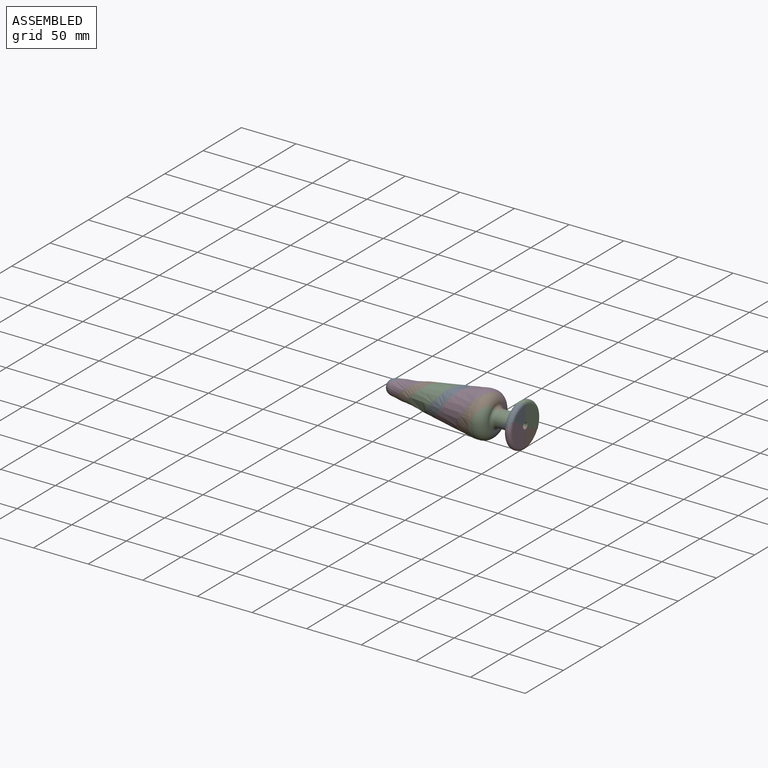
[diagram: assembled view]
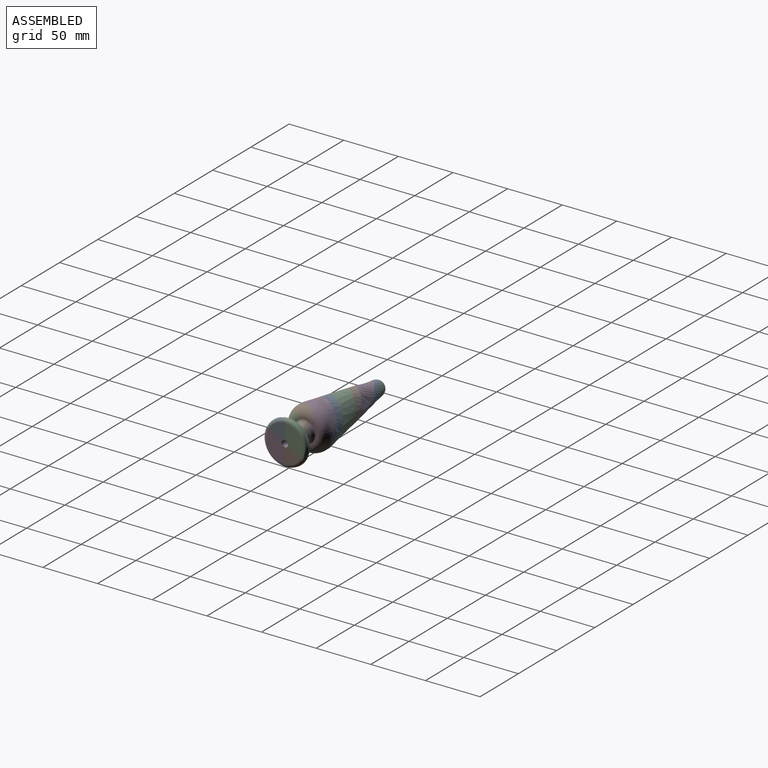
[diagram: assembled view, second angle]
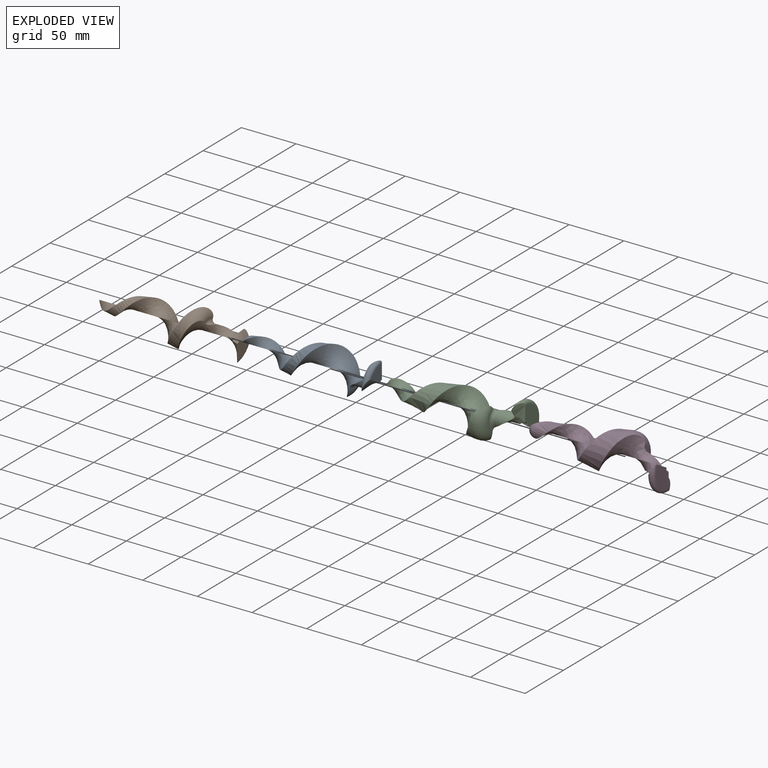
[diagram: exploded view]
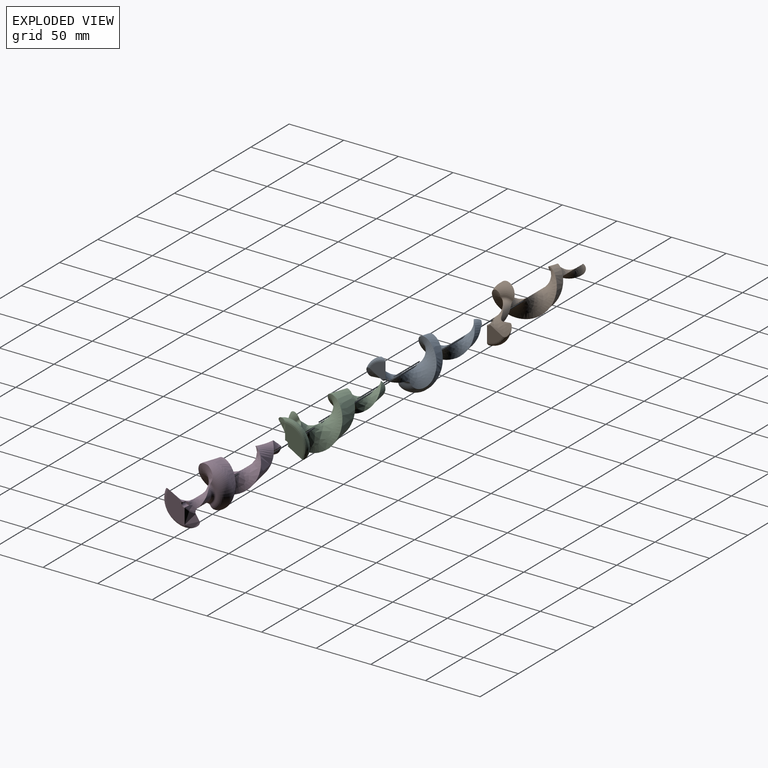
[diagram: exploded view, second angle]
ASSEMBLY  parts=4 mates=4
PART A: 17 faces, bbox 43.5x42.2x126 mm
  f0: plane 15.5x15.18mm, normal (0,0,-1), area 147.5mm2, adj f1,f2,f13,f16
  f1: bspline ~126x41.03mm, area 2108.3mm2, adj f0,f2,f3,f4,f5,f6,f7,f8
  f2: bspline ~126x40.91mm, area 2107.4mm2, adj f0,f1,f3,f4,f5,f6,f7,f8
  f3: bspline ~32.96x11.84mm, area 73.3mm2, adj f1,f2,f4,f6
  f4: cone r=20mm half-angle=9.1deg, axis (0,0,-1), area 1166.1mm2, adj f1,f2,f3,f5
  f5: sphere r=7mm, area 43.2mm2, adj f1,f2,f4
  f6: torus R=11mm, axis (0,0,1), area 247.7mm2, adj f1,f2,f3,f7
  f7: plane 9.66x5.52mm, normal (0,0,-1), area 5.6mm2, adj f1,f2,f6,f8
  f8: torus R=10.5mm, axis (0,0,1), area 42.4mm2, adj f1,f2,f7,f9
  f9: cylinder r=7.5mm len=14mm, axis (0,0,1), area 110mm2, adj f1,f2,f8,f10
  f10: torus R=10.5mm, axis (0,0,1), area 42.4mm2, adj f1,f2,f9,f11
  f11: plane 16.95x8.33mm, normal (0,0,1), area 93.6mm2, adj f1,f2,f10,f12
  f12: torus R=17mm, axis (0,0,1), area 93.3mm2, adj f1,f2,f11,f13
  f13: bspline ~26.39x14.29mm, area 92mm2, adj f0,f1,f2,f12
  f14: cylinder r=2.5mm len=4.5mm, axis (0,0,-1), area 11.8mm2, adj f1,f2,f15,f16
  f15: plane 2.5x2.5mm, normal (0,0,-1), area 3.3mm2, adj f1,f2,f14
  f16: cone r=2.5mm half-angle=45deg, axis (0,0,-1), area 2mm2, adj f0,f1,f2,f14
PART B: same geometry as A
PART C: 17 faces, bbox 48.9x47.8x126.1 mm
  f0: plane 25.9x17.15mm, normal (0,0,-1), area 294.1mm2, adj f2,f3,f13,f16
  f1: bspline ~41.62x37.12mm, area 146.6mm2, adj f2,f3,f4,f6
  f2: bspline ~126x41.03mm, area 2109.3mm2, adj f0,f1,f3,f4,f5,f6,f7,f8
  f3: bspline ~126x40.91mm, area 2107.8mm2, adj f0,f1,f2,f4,f5,f6,f7,f8
  f4: cone r=20mm half-angle=9.1deg, axis (0,0,-1), area 2330.5mm2, adj f1,f2,f3,f5
  f5: sphere r=7mm, area 86.3mm2, adj f2,f3,f4
  f6: torus R=11mm, axis (0,0,1), area 495.3mm2, adj f1,f2,f3,f7
  f7: plane 19.05x5.99mm, normal (0,0,-1), area 11.3mm2, adj f2,f3,f6,f8
  f8: torus R=10.5mm, axis (0,0,1), area 84.8mm2, adj f2,f3,f7,f9
  f9: cylinder r=7.5mm len=14.48mm, axis (0,0,1), area 219.9mm2, adj f2,f3,f8,f10
  f10: torus R=10.5mm, axis (0,0,1), area 84.8mm2, adj f2,f3,f9,f11
  f11: plane 26.54x16.21mm, normal (0,0,1), area 187.2mm2, adj f2,f3,f10,f12
  f12: torus R=17mm, axis (0,0,1), area 186.6mm2, adj f2,f3,f11,f13
  f13: bspline ~31.65x26.33mm, area 191.9mm2, adj f0,f2,f3,f12
  f14: cylinder r=2.5mm len=4.5mm, axis (0,0,-1), area 23.6mm2, adj f2,f3,f15,f16
  f15: plane 3.7x2.56mm, normal (0,0,-1), area 6.5mm2, adj f2,f3,f14
  f16: cone r=2.5mm half-angle=45deg, axis (0,0,-1), area 4.1mm2, adj f0,f2,f3,f14
PART D: 17 faces, bbox 48.9x47.8x126.1 mm
  f0: plane 25.9x17.15mm, normal (0,0,-1), area 294.1mm2, adj f2,f3,f13,f16
  f1: bspline ~41.62x37.12mm, area 146.6mm2, adj f2,f3,f4,f6
  f2: bspline ~126x41.03mm, area 2109.3mm2, adj f0,f1,f3,f4,f5,f6,f7,f8
  f3: bspline ~126x40.91mm, area 2107.8mm2, adj f0,f1,f2,f4,f5,f6,f7,f8
  f4: cone r=20mm half-angle=9.1deg, axis (0,0,-1), area 2330.5mm2, adj f1,f2,f3,f5
  f5: sphere r=7mm, area 74.7mm2, adj f2,f3,f4
  f6: torus R=11mm, axis (0,0,1), area 495.3mm2, adj f1,f2,f3,f7
  f7: plane 19.05x5.99mm, normal (0,0,-1), area 11.3mm2, adj f2,f3,f6,f8
  f8: torus R=10.5mm, axis (0,0,1), area 84.8mm2, adj f2,f3,f7,f9
  f9: cylinder r=7.5mm len=14.48mm, axis (0,0,1), area 219.9mm2, adj f2,f3,f8,f10
  f10: torus R=10.5mm, axis (0,0,1), area 84.8mm2, adj f2,f3,f9,f11
  f11: plane 26.54x16.21mm, normal (0,0,1), area 187.2mm2, adj f2,f3,f10,f12
  f12: torus R=17mm, axis (0,0,1), area 186.6mm2, adj f2,f3,f11,f13
  f13: bspline ~31.65x26.33mm, area 191.9mm2, adj f0,f2,f3,f12
  f14: cylinder r=2.5mm len=4.5mm, axis (0,0,-1), area 23.6mm2, adj f2,f3,f15,f16
  f15: plane 3.7x2.56mm, normal (0,0,-1), area 6.5mm2, adj f2,f3,f14
  f16: cone r=2.5mm half-angle=45deg, axis (0,0,-1), area 4.1mm2, adj f0,f2,f3,f14
PLACE A rot(axis=(0.45,-0.77,-0.45),104.5deg) t=(5,0,0)mm
PLACE B rot(axis=(-0.65,-0.38,0.65),138.3deg) t=(5,0,0)mm
PLACE C rot(axis=(0,-1,0),90deg) t=(5,0,0)mm
PLACE D rot(axis=(0,-1,0),90deg) t=(5,0,0)mm
MATE revolute C.f14 <-> A.f14  axis (1,0,0) through (5,0,0)mm
MATE revolute C.f14 <-> B.f14  axis (1,0,0) through (5,0,0)mm
MATE planar B.f15 <-> C.f15  axis (1,0,0) through (0,1.36,-0.82)mm
MATE planar D.f15 <-> A.f15  axis (1,0,0) through (0,-0.72,-1.18)mm
